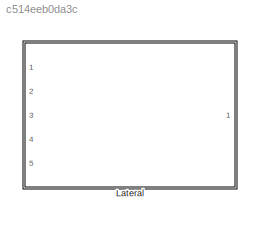
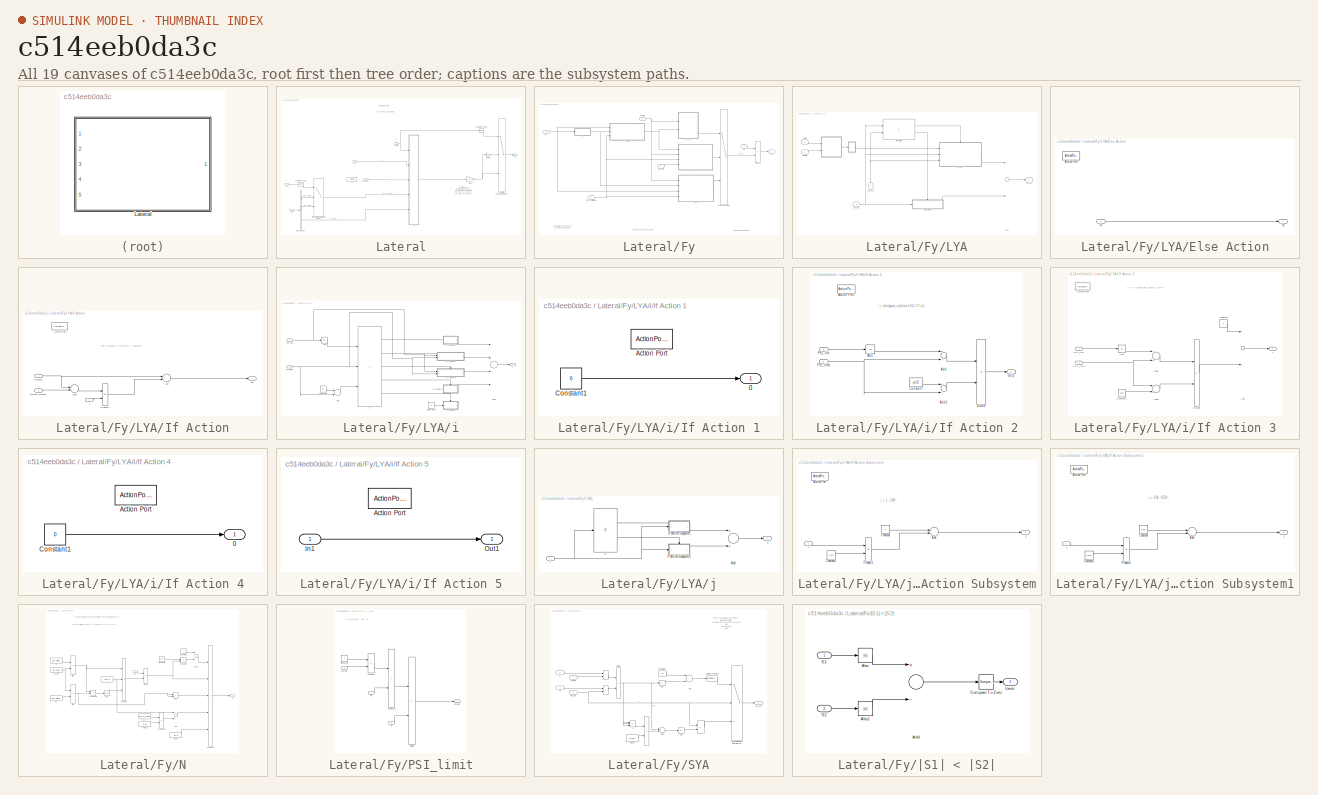
[diagram: thumbnail index - all 19 canvases of the model, root first then tree order]
MODEL slx_c514eeb0da3c
KIND library
BLOCK [SubSystem] Lateral
  FunctionWithSeparateData = off
  MaskHideContents = off
  MinAlgLoopOccurrences = off
  Opaque = off
  Ports = [5, 1]
  PropExecContextOutsideSubsystem = off
  RTWSystemCode = Auto
  RequestExecContextInheritance = off
BLOCK [MultiPortSwitch] Lateral/Braking effect on lateral forces
  DataPortIndices = {0,1}
  DataPortOrder = Specify indices
  InputSameDT = off
  Inputs = 2
  Ports = [3, 1]
  SaturateOnIntegerOverflow = off
BLOCK [BusSelector] Lateral/Bus Selector
  OutputSignals = mu_PSImax,mu_PSIlim,mu_slide
  Ports = [1, 3]
BLOCK [Reference] Lateral/Compare To Zero  REF=simulink/Logic and Bit
Operations/Compare
To Zero
  OutDataTypeStr = uint8
  Ports = [1, 1]
  SourceBlock = simulink/Logic and Bit\nOperations/Compare\nTo Zero
  SourceType = Compare To Zero
  ZeroCross = on
  relop = ~=
BLOCK [Reference] Lateral/Compare To Zero1  REF=simulink/Logic and Bit
Operations/Compare
To Zero
  OutDataTypeStr = boolean
  Ports = [1, 1]
  SourceBlock = simulink/Logic and Bit\nOperations/Compare\nTo Zero
  SourceType = Compare To Zero
  ZeroCross = on
  relop = <=
BLOCK [Outport] Lateral/F_y
  IconDisplay = Port number
BLOCK [Inport] Lateral/F_z
  IconDisplay = Port number
  Port = 2
BLOCK [Inport] Lateral/F_zModel
  IconDisplay = Port number
  Port = 5
BLOCK [SubSystem] Lateral/Fy
  FunctionWithSeparateData = off
  MaskHideContents = off
  MinAlgLoopOccurrences = off
  Opaque = off
  Ports = [5, 1]
  PropExecContextOutsideSubsystem = off
  RTWSystemCode = Auto
  RequestExecContextInheritance = off
BLOCK [MultiPortSwitch] Lateral/Fy vs -Fy depending on PSI
  DataPortIndices = {0,1}
  DataPortOrder = Specify indices
  InputSameDT = off
  Inputs = 2
  Ports = [3, 1]
  SaturateOnIntegerOverflow = off
BLOCK [Outport] Lateral/Fy/Fy
  IconDisplay = Port number
BLOCK [Inport] Lateral/Fy/Fz
  IconDisplay = Port number
  Port = 2
BLOCK [Inport] Lateral/Fy/Fz.
  IconDisplay = Port number
  Port = 3
BLOCK [SubSystem] Lateral/Fy/LYA
  FunctionWithSeparateData = off
  MaskHideContents = off
  MinAlgLoopOccurrences = off
  Opaque = off
  Ports = [4, 1]
  PropExecContextOutsideSubsystem = off
  RTWSystemCode = Auto
  RequestExecContextInheritance = off
BLOCK [Sum] Lateral/Fy/LYA/Add
  InputSameDT = off
  OutDataTypeStr = Inherit: Inherit via internal rule
  Ports = [2, 1]
  SaturateOnIntegerOverflow = off
BLOCK [SubSystem] Lateral/Fy/LYA/Else Action
  FunctionWithSeparateData = off
  MaskHideContents = off
  MinAlgLoopOccurrences = off
  Opaque = off
  Ports = [1, 1, 0, 0, 0, 0, 0, 1]
  PropExecContextOutsideSubsystem = off
  RTWSystemCode = Auto
  RequestExecContextInheritance = off
  TreatAsAtomicUnit = on
BLOCK [ActionPort] Lateral/Fy/LYA/Else Action/Action Port
  InitializeStates = reset
BLOCK [Inport] Lateral/Fy/LYA/Else Action/id
  IconDisplay = Port number
BLOCK [Outport] Lateral/Fy/LYA/Else Action/id'
  IconDisplay = Port number
  InitialOutput = [0]
  OutputWhenDisabled = reset
BLOCK [SubSystem] Lateral/Fy/LYA/If Action
  FunctionWithSeparateData = off
  MaskHideContents = off
  MinAlgLoopOccurrences = off
  Opaque = off
  Ports = [3, 1, 0, 0, 0, 0, 0, 1]
  PropExecContextOutsideSubsystem = off
  RTWSystemCode = Auto
  RequestExecContextInheritance = off
  TreatAsAtomicUnit = on
BLOCK [ActionPort] Lateral/Fy/LYA/If Action/Action Port
  InitializeStates = reset
  PropagateVarSize = During execution
BLOCK [Sum] Lateral/Fy/LYA/If Action/Add
  InputSameDT = off
  OutDataTypeStr = Inherit: Inherit via internal rule
  Ports = [2, 1]
  SaturateOnIntegerOverflow = off
BLOCK [Sum] Lateral/Fy/LYA/If Action/Add1
  InputSameDT = off
  Inputs = -+
  OutDataTypeStr = Inherit: Inherit via internal rule
  Ports = [2, 1]
  SaturateOnIntegerOverflow = off
BLOCK [Product] Lateral/Fy/LYA/If Action/Product1
  InputSameDT = off
  OutDataTypeStr = Inherit: Inherit via internal rule
  Ports = [2, 1]
  RndMeth = Floor
  SaturateOnIntegerOverflow = off
BLOCK [Inport] Lateral/Fy/LYA/If Action/j
  IconDisplay = Port number
BLOCK [Inport] Lateral/Fy/LYA/If Action/mu_psi_LimMax
  IconDisplay = Port number
  Port = 2
BLOCK [Inport] Lateral/Fy/LYA/If Action/mu_skid
  IconDisplay = Port number
  Port = 3
BLOCK [Outport] Lateral/Fy/LYA/If Action/res
  IconDisplay = Port number
  InitialOutput = [0]
  OutputWhenDisabled = reset
BLOCK [If] Lateral/Fy/LYA/If Condition
  IfExpression = u1 > u2
  NumInputs = 2
  Ports = [2, 2]
BLOCK [Inport] Lateral/Fy/LYA/PSI_limit
  IconDisplay = Port number
BLOCK [Inport] Lateral/Fy/LYA/PSI_tire
  IconDisplay = Port number
  Port = 2
BLOCK [SubSystem] Lateral/Fy/LYA/i
  FunctionWithSeparateData = off
  MaskHideContents = off
  MinAlgLoopOccurrences = off
  Opaque = off
  Ports = [2, 1]
  PropExecContextOutsideSubsystem = off
  RTWSystemCode = Auto
  RequestExecContextInheritance = off
BLOCK [Abs] Lateral/Fy/LYA/i/Abs
  SaturateOnIntegerOverflow = off
BLOCK [Sum] Lateral/Fy/LYA/i/Add
  InputSameDT = off
  Inputs = +-
  OutDataTypeStr = Inherit: Inherit via internal rule
  Ports = [2, 1]
  SaturateOnIntegerOverflow = off
BLOCK [Sum] Lateral/Fy/LYA/i/Add1
  InputSameDT = off
  Inputs = ++++
  OutDataTypeStr = Inherit: Inherit via internal rule
  Ports = [4, 1]
  SaturateOnIntegerOverflow = off
BLOCK [Constant] Lateral/Fy/LYA/i/Constant
  Value = pi
BLOCK [Constant] Lateral/Fy/LYA/i/Constant5
  Value = 5
BLOCK [If] Lateral/Fy/LYA/i/If
  ElseIfExpressions = u2 <  u1 & u1 < 1.57, 1.57 < u1 & u1 < 3.14, u3 <= u1
  IfExpression = 0 < u1 & u1 < u2
  NumInputs = 3
  Ports = [3, 5]
BLOCK [SubSystem] Lateral/Fy/LYA/i/If Action 1
  FunctionWithSeparateData = off
  MaskHideContents = off
  MinAlgLoopOccurrences = off
  Opaque = off
  Ports = [0, 1, 0, 0, 0, 0, 0, 1]
  PropExecContextOutsideSubsystem = off
  RTWSystemCode = Auto
  RequestExecContextInheritance = off
  TreatAsAtomicUnit = on
BLOCK [Outport] Lateral/Fy/LYA/i/If Action 1/0
  IconDisplay = Port number
  InitialOutput = [0]
  OutputWhenDisabled = reset
BLOCK [ActionPort] Lateral/Fy/LYA/i/If Action 1/Action Port
  InitializeStates = reset
  PropagateVarSize = During execution
BLOCK [Constant] Lateral/Fy/LYA/i/If Action 1/Constant1
  Value = 0
BLOCK [SubSystem] Lateral/Fy/LYA/i/If Action 2
  FunctionWithSeparateData = off
  MaskHideContents = off
  MinAlgLoopOccurrences = off
  Opaque = off
  Ports = [2, 1, 0, 0, 0, 0, 0, 1]
  PropExecContextOutsideSubsystem = off
  RTWSystemCode = Auto
  RequestExecContextInheritance = off
  TreatAsAtomicUnit = on
BLOCK [Abs] Lateral/Fy/LYA/i/If Action 2/Abs
  SaturateOnIntegerOverflow = off
BLOCK [ActionPort] Lateral/Fy/LYA/i/If Action 2/Action Port
  InitializeStates = reset
BLOCK [Sum] Lateral/Fy/LYA/i/If Action 2/Add
  InputSameDT = off
  Inputs = +-
  OutDataTypeStr = Inherit: Inherit via internal rule
  Ports = [2, 1]
  SaturateOnIntegerOverflow = off
BLOCK [Sum] Lateral/Fy/LYA/i/If Action 2/Add1
  InputSameDT = off
  Inputs = +-
  OutDataTypeStr = Inherit: Inherit via internal rule
  Ports = [2, 1]
  SaturateOnIntegerOverflow = off
BLOCK [Constant] Lateral/Fy/LYA/i/If Action 2/Constant
  Value = pi/2
BLOCK [Product] Lateral/Fy/LYA/i/If Action 2/Divide
  InputSameDT = off
  Inputs = */
  OutDataTypeStr = Inherit: Inherit via internal rule
  Ports = [2, 1]
  RndMeth = Floor
  SaturateOnIntegerOverflow = off
BLOCK [Outport] Lateral/Fy/LYA/i/If Action 2/Out1
  IconDisplay = Port number
  InitialOutput = [0]
  OutputWhenDisabled = reset
BLOCK [Inport] Lateral/Fy/LYA/i/If Action 2/PSI_limit
  IconDisplay = Port number
  Port = 2
BLOCK [Inport] Lateral/Fy/LYA/i/If Action 2/PSI_tire
  IconDisplay = Port number
BLOCK [SubSystem] Lateral/Fy/LYA/i/If Action 3
  FunctionWithSeparateData = off
  MaskHideContents = off
  MinAlgLoopOccurrences = off
  Opaque = off
  Ports = [2, 1, 0, 0, 0, 0, 0, 1]
  PropExecContextOutsideSubsystem = off
  RTWSystemCode = Auto
  RequestExecContextInheritance = off
  TreatAsAtomicUnit = on
BLOCK [Abs] Lateral/Fy/LYA/i/If Action 3/Abs
  SaturateOnIntegerOverflow = off
BLOCK [ActionPort] Lateral/Fy/LYA/i/If Action 3/Action Port
  InitializeStates = reset
  PropagateVarSize = During execution
BLOCK [Sum] Lateral/Fy/LYA/i/If Action 3/Add
  InputSameDT = off
  OutDataTypeStr = Inherit: Inherit via internal rule
  Ports = [2, 1]
  SaturateOnIntegerOverflow = off
BLOCK [Sum] Lateral/Fy/LYA/i/If Action 3/Add1
  InputSameDT = off
  Inputs = -+
  OutDataTypeStr = Inherit: Inherit via internal rule
  Ports = [2, 1]
  SaturateOnIntegerOverflow = off
BLOCK [Sum] Lateral/Fy/LYA/i/If Action 3/Add2
  InputSameDT = off
  Inputs = -+
  OutDataTypeStr = Inherit: Inherit via internal rule
  Ports = [2, 1]
  SaturateOnIntegerOverflow = off
BLOCK [Constant] Lateral/Fy/LYA/i/If Action 3/Constant
  Value = 2
BLOCK [Constant] Lateral/Fy/LYA/i/If Action 3/Constant1
  Value = pi/2
BLOCK [Product] Lateral/Fy/LYA/i/If Action 3/Divide
  InputSameDT = off
  Inputs = */
  OutDataTypeStr = Inherit: Inherit via internal rule
  Ports = [2, 1]
  RndMeth = Floor
  SaturateOnIntegerOverflow = off
BLOCK [Inport] Lateral/Fy/LYA/i/If Action 3/PSI_limit
  IconDisplay = Port number
  Port = 2
BLOCK [Inport] Lateral/Fy/LYA/i/If Action 3/PSI_tire
  IconDisplay = Port number
BLOCK [Outport] Lateral/Fy/LYA/i/If Action 3/i
  IconDisplay = Port number
  InitialOutput = [0]
  OutputWhenDisabled = reset
BLOCK [SubSystem] Lateral/Fy/LYA/i/If Action 4
  FunctionWithSeparateData = off
  MaskHideContents = off
  MinAlgLoopOccurrences = off
  Opaque = off
  Ports = [0, 1, 0, 0, 0, 0, 0, 1]
  PropExecContextOutsideSubsystem = off
  RTWSystemCode = Auto
  RequestExecContextInheritance = off
  TreatAsAtomicUnit = on
BLOCK [Outport] Lateral/Fy/LYA/i/If Action 4/0
  IconDisplay = Port number
  InitialOutput = [0]
  OutputWhenDisabled = reset
BLOCK [ActionPort] Lateral/Fy/LYA/i/If Action 4/Action Port
  InitializeStates = reset
  PropagateVarSize = During execution
BLOCK [Constant] Lateral/Fy/LYA/i/If Action 4/Constant1
  Value = 0
BLOCK [SubSystem] Lateral/Fy/LYA/i/If Action 5
  FunctionWithSeparateData = off
  MaskHideContents = off
  MinAlgLoopOccurrences = off
  Opaque = off
  Ports = [1, 1, 0, 0, 0, 0, 0, 1]
  PropExecContextOutsideSubsystem = off
  RTWSystemCode = Auto
  RequestExecContextInheritance = off
  TreatAsAtomicUnit = on
BLOCK [ActionPort] Lateral/Fy/LYA/i/If Action 5/Action Port
  InitializeStates = reset
  PropagateVarSize = During execution
BLOCK [Inport] Lateral/Fy/LYA/i/If Action 5/In1
  IconDisplay = Port number
BLOCK [Outport] Lateral/Fy/LYA/i/If Action 5/Out1
  IconDisplay = Port number
  InitialOutput = [0]
  OutputWhenDisabled = reset
BLOCK [Inport] Lateral/Fy/LYA/i/PSI_limit
  IconDisplay = Port number
  Port = 2
BLOCK [Inport] Lateral/Fy/LYA/i/PSI_tire
  IconDisplay = Port number
BLOCK [Outport] Lateral/Fy/LYA/i/i
  IconDisplay = Port number
BLOCK [SubSystem] Lateral/Fy/LYA/j
  FunctionWithSeparateData = off
  MaskHideContents = off
  MinAlgLoopOccurrences = off
  Opaque = off
  Ports = [1, 1]
  PropExecContextOutsideSubsystem = off
  RTWSystemCode = Auto
  RequestExecContextInheritance = off
BLOCK [Sum] Lateral/Fy/LYA/j/Add
  InputSameDT = off
  OutDataTypeStr = Inherit: Inherit via internal rule
  Ports = [2, 1]
  SaturateOnIntegerOverflow = off
BLOCK [If] Lateral/Fy/LYA/j/If
  IfExpression = u1 < 0.3
  Ports = [1, 2]
BLOCK [SubSystem] Lateral/Fy/LYA/j/If Action Subsystem
  FunctionWithSeparateData = off
  MaskHideContents = off
  MinAlgLoopOccurrences = off
  Opaque = off
  Ports = [1, 1, 0, 0, 0, 0, 0, 1]
  PropExecContextOutsideSubsystem = off
  RTWSystemCode = Auto
  RequestExecContextInheritance = off
  TreatAsAtomicUnit = on
BLOCK [ActionPort] Lateral/Fy/LYA/j/If Action Subsystem/Action Port
  InitializeStates = reset
  PropagateVarSize = During execution
BLOCK [Sum] Lateral/Fy/LYA/j/If Action Subsystem/Add
  InputSameDT = off
  Inputs = +-
  OutDataTypeStr = Inherit: Inherit via internal rule
  Ports = [2, 1]
  SaturateOnIntegerOverflow = off
BLOCK [Constant] Lateral/Fy/LYA/j/If Action Subsystem/Constant
BLOCK [Constant] Lateral/Fy/LYA/j/If Action Subsystem/Constant1
  Value = 1.93
BLOCK [Product] Lateral/Fy/LYA/j/If Action Subsystem/Product1
  InputSameDT = off
  OutDataTypeStr = Inherit: Inherit via internal rule
  Ports = [2, 1]
  RndMeth = Floor
  SaturateOnIntegerOverflow = off
BLOCK [Inport] Lateral/Fy/LYA/j/If Action Subsystem/i
  IconDisplay = Port number
BLOCK [Outport] Lateral/Fy/LYA/j/If Action Subsystem/j
  IconDisplay = Port number
  InitialOutput = [0]
  OutputWhenDisabled = reset
BLOCK [SubSystem] Lateral/Fy/LYA/j/If Action Subsystem1
  FunctionWithSeparateData = off
  MaskHideContents = off
  MinAlgLoopOccurrences = off
  Opaque = off
  Ports = [1, 1, 0, 0, 0, 0, 0, 1]
  PropExecContextOutsideSubsystem = off
  RTWSystemCode = Auto
  RequestExecContextInheritance = off
  TreatAsAtomicUnit = on
BLOCK [ActionPort] Lateral/Fy/LYA/j/If Action Subsystem1/Action Port
  InitializeStates = reset
BLOCK [Sum] Lateral/Fy/LYA/j/If Action Subsystem1/Add
  InputSameDT = off
  Inputs = +-
  OutDataTypeStr = Inherit: Inherit via internal rule
  Ports = [2, 1]
  SaturateOnIntegerOverflow = off
BLOCK [Constant] Lateral/Fy/LYA/j/If Action Subsystem1/Constant
  Value = 0.58
BLOCK [Constant] Lateral/Fy/LYA/j/If Action Subsystem1/Constant1
  Value = 0.575
BLOCK [Product] Lateral/Fy/LYA/j/If Action Subsystem1/Product1
  InputSameDT = off
  OutDataTypeStr = Inherit: Inherit via internal rule
  Ports = [2, 1]
  RndMeth = Floor
  SaturateOnIntegerOverflow = off
BLOCK [Inport] Lateral/Fy/LYA/j/If Action Subsystem1/i
  IconDisplay = Port number
BLOCK [Outport] Lateral/Fy/LYA/j/If Action Subsystem1/j
  IconDisplay = Port number
  InitialOutput = [0]
  OutputWhenDisabled = reset
BLOCK [Inport] Lateral/Fy/LYA/j/i
  IconDisplay = Port number
BLOCK [Outport] Lateral/Fy/LYA/j/j
  IconDisplay = Port number
BLOCK [Outport] Lateral/Fy/LYA/mu_PSI
  IconDisplay = Port number
BLOCK [Inport] Lateral/Fy/LYA/mu_psi
  IconDisplay = Port number
  Port = 3
BLOCK [Inport] Lateral/Fy/LYA/mu_skid
  IconDisplay = Port number
  Port = 4
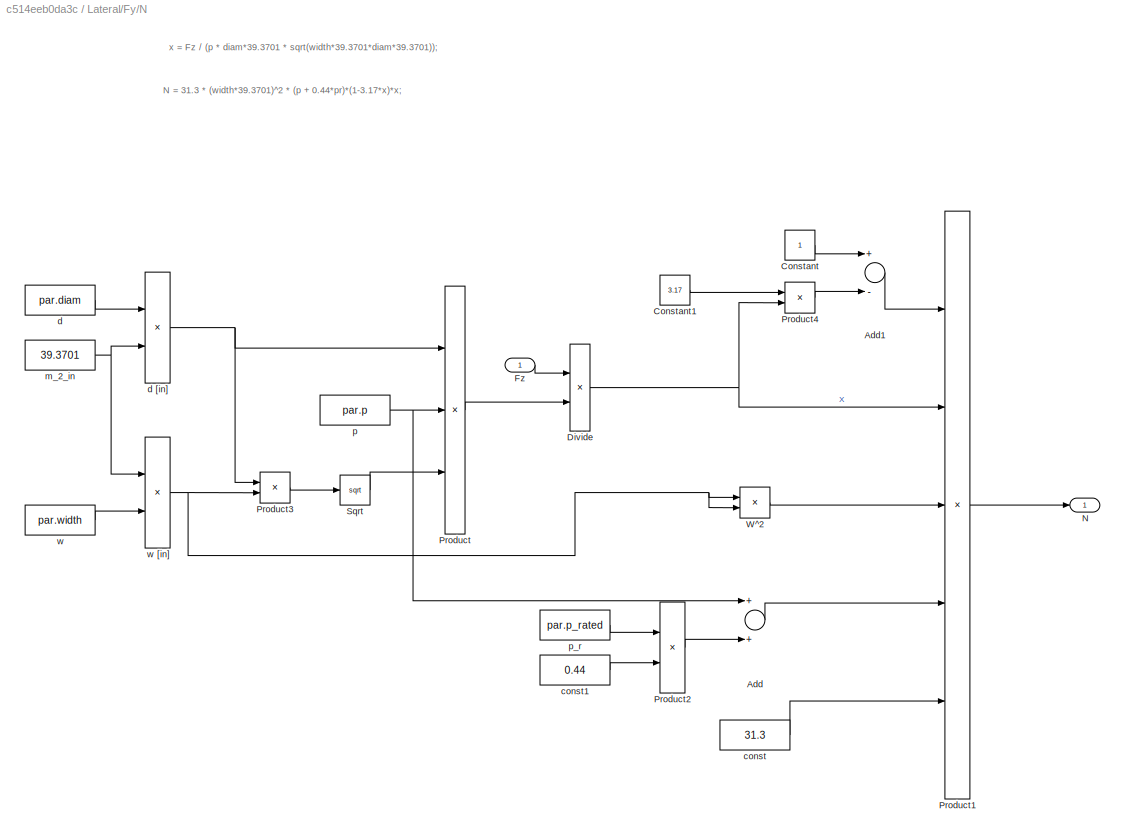
BLOCK [SubSystem] Lateral/Fy/N
  FunctionWithSeparateData = off
  MaskHideContents = off
  MinAlgLoopOccurrences = off
  Opaque = off
  Ports = [1, 1]
  PropExecContextOutsideSubsystem = off
  RTWSystemCode = Auto
  RequestExecContextInheritance = off
BLOCK [Sum] Lateral/Fy/N/Add
  InputSameDT = off
  OutDataTypeStr = Inherit: Inherit via internal rule
  Ports = [2, 1]
  SaturateOnIntegerOverflow = off
BLOCK [Sum] Lateral/Fy/N/Add1
  InputSameDT = off
  Inputs = +-
  OutDataTypeStr = Inherit: Inherit via internal rule
  Ports = [2, 1]
  SaturateOnIntegerOverflow = off
BLOCK [Constant] Lateral/Fy/N/Constant
BLOCK [Constant] Lateral/Fy/N/Constant1
  Value = 3.17
BLOCK [Product] Lateral/Fy/N/Divide
  InputSameDT = off
  Inputs = */
  OutDataTypeStr = Inherit: Inherit via internal rule
  Ports = [2, 1]
  RndMeth = Floor
  SaturateOnIntegerOverflow = off
BLOCK [Inport] Lateral/Fy/N/Fz
  IconDisplay = Port number
BLOCK [Outport] Lateral/Fy/N/N
  IconDisplay = Port number
BLOCK [Product] Lateral/Fy/N/Product
  InputSameDT = off
  Inputs = 3
  OutDataTypeStr = Inherit: Inherit via internal rule
  Ports = [3, 1]
  RndMeth = Floor
  SaturateOnIntegerOverflow = off
BLOCK [Product] Lateral/Fy/N/Product1
  InputSameDT = off
  Inputs = 5
  OutDataTypeStr = Inherit: Inherit via internal rule
  Ports = [5, 1]
  RndMeth = Floor
  SaturateOnIntegerOverflow = off
BLOCK [Product] Lateral/Fy/N/Product2
  InputSameDT = off
  OutDataTypeStr = Inherit: Inherit via internal rule
  Ports = [2, 1]
  RndMeth = Floor
  SaturateOnIntegerOverflow = off
BLOCK [Product] Lateral/Fy/N/Product3
  InputSameDT = off
  OutDataTypeStr = Inherit: Inherit via internal rule
  Ports = [2, 1]
  RndMeth = Floor
  SaturateOnIntegerOverflow = off
BLOCK [Product] Lateral/Fy/N/Product4
  InputSameDT = off
  OutDataTypeStr = Inherit: Inherit via internal rule
  Ports = [2, 1]
  RndMeth = Floor
  SaturateOnIntegerOverflow = off
BLOCK [Sqrt] Lateral/Fy/N/Sqrt
BLOCK [Product] Lateral/Fy/N/W^2
  InputSameDT = off
  OutDataTypeStr = Inherit: Inherit via internal rule
  Ports = [2, 1]
  RndMeth = Floor
  SaturateOnIntegerOverflow = off
BLOCK [Constant] Lateral/Fy/N/const
  Value = 31.3
BLOCK [Constant] Lateral/Fy/N/const1 
  Value = 0.44
BLOCK [Constant] Lateral/Fy/N/d
  Value = par.diam
BLOCK [Product] Lateral/Fy/N/d [in]
  InputSameDT = off
  OutDataTypeStr = Inherit: Inherit via internal rule
  Ports = [2, 1]
  RndMeth = Floor
  SaturateOnIntegerOverflow = off
BLOCK [Constant] Lateral/Fy/N/m_2_in
  Value = 39.3701
BLOCK [Constant] Lateral/Fy/N/p
  Value = par.p
BLOCK [Constant] Lateral/Fy/N/p_r
  Value = par.p_rated
BLOCK [Constant] Lateral/Fy/N/w
  Value = par.width
BLOCK [Product] Lateral/Fy/N/w [in]
  InputSameDT = off
  OutDataTypeStr = Inherit: Inherit via internal rule
  Ports = [2, 1]
  RndMeth = Floor
  SaturateOnIntegerOverflow = off
BLOCK [SubSystem] Lateral/Fy/PSI_limit
  FunctionWithSeparateData = off
  MaskHideContents = off
  MinAlgLoopOccurrences = off
  Opaque = off
  Ports = [3, 1]
  PropExecContextOutsideSubsystem = off
  RTWSystemCode = Auto
  RequestExecContextInheritance = off
BLOCK [Constant] Lateral/Fy/PSI_limit/Constant
  Value = 2
BLOCK [Product] Lateral/Fy/PSI_limit/Divide
  InputSameDT = off
  Inputs = */
  OutDataTypeStr = Inherit: Inherit via internal rule
  Ports = [2, 1]
  RndMeth = Floor
  SaturateOnIntegerOverflow = off
BLOCK [Inport] Lateral/Fy/PSI_limit/Fz
  IconDisplay = Port number
BLOCK [Inport] Lateral/Fy/PSI_limit/N
  IconDisplay = Port number
  Port = 2
BLOCK [Outport] Lateral/Fy/PSI_limit/PSI_lim
  IconDisplay = Port number
BLOCK [Product] Lateral/Fy/PSI_limit/Product
  InputSameDT = off
  OutDataTypeStr = Inherit: Inherit via internal rule
  Ports = [2, 1]
  RndMeth = Floor
  SaturateOnIntegerOverflow = off
BLOCK [Product] Lateral/Fy/PSI_limit/Product1
  InputSameDT = off
  OutDataTypeStr = Inherit: Inherit via internal rule
  Ports = [2, 1]
  RndMeth = Floor
  SaturateOnIntegerOverflow = off
BLOCK [Inport] Lateral/Fy/PSI_limit/mu_psi
  IconDisplay = Port number
  Port = 3
BLOCK [Inport] Lateral/Fy/PSI_tire
  IconDisplay = Port number
BLOCK [Product] Lateral/Fy/Product
  InputSameDT = off
  OutDataTypeStr = Inherit: Inherit via internal rule
  Ports = [2, 1]
  RndMeth = Floor
  SaturateOnIntegerOverflow = off
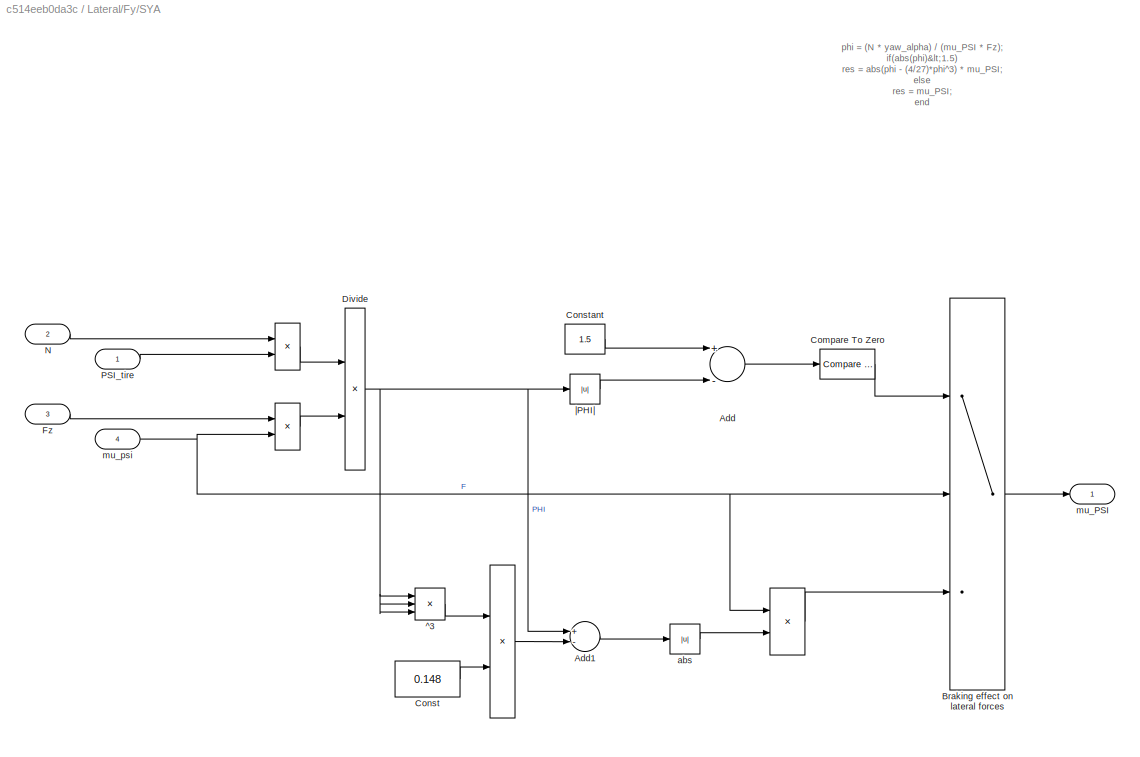
BLOCK [SubSystem] Lateral/Fy/SYA
  FunctionWithSeparateData = off
  MaskHideContents = off
  MinAlgLoopOccurrences = off
  Opaque = off
  Ports = [4, 1]
  PropExecContextOutsideSubsystem = off
  RTWSystemCode = Auto
  RequestExecContextInheritance = off
BLOCK [Product] Lateral/Fy/SYA/ 
  InputSameDT = off
  OutDataTypeStr = Inherit: Inherit via internal rule
  Ports = [2, 1]
  RndMeth = Floor
  SaturateOnIntegerOverflow = off
BLOCK [Product] Lateral/Fy/SYA/  
  InputSameDT = off
  OutDataTypeStr = Inherit: Inherit via internal rule
  Ports = [2, 1]
  RndMeth = Floor
  SaturateOnIntegerOverflow = off
BLOCK [Product] Lateral/Fy/SYA/                           
  InputSameDT = off
  OutDataTypeStr = Inherit: Inherit via internal rule
  Ports = [2, 1]
  RndMeth = Floor
  SaturateOnIntegerOverflow = off
BLOCK [Product] Lateral/Fy/SYA/                                          
  InputSameDT = off
  OutDataTypeStr = Inherit: Inherit via internal rule
  Ports = [2, 1]
  RndMeth = Floor
  SaturateOnIntegerOverflow = off
BLOCK [MultiPortSwitch] Lateral/Fy/SYA//LYA selector
  DataPortIndices = {0,1}
  DataPortOrder = Specify indices
  InputSameDT = off
  Inputs = 2
  Ports = [3, 1]
  SaturateOnIntegerOverflow = off
BLOCK [Sum] Lateral/Fy/SYA/Add
  InputSameDT = off
  Inputs = +-
  OutDataTypeStr = Inherit: Inherit via internal rule
  Ports = [2, 1]
  SaturateOnIntegerOverflow = off
BLOCK [Sum] Lateral/Fy/SYA/Add1
  InputSameDT = off
  Inputs = +-
  OutDataTypeStr = Inherit: Inherit via internal rule
  Ports = [2, 1]
  SaturateOnIntegerOverflow = off
BLOCK [MultiPortSwitch] Lateral/Fy/SYA/Braking effect on lateral forces
  DataPortIndices = {0,1}
  DataPortOrder = Specify indices
  InputSameDT = off
  Inputs = 2
  Ports = [3, 1]
  SaturateOnIntegerOverflow = off
BLOCK [Reference] Lateral/Fy/SYA/Compare To Zero  REF=simulink/Logic and Bit
Operations/Compare
To Zero
  OutDataTypeStr = boolean
  Ports = [1, 1]
  SourceBlock = simulink/Logic and Bit\nOperations/Compare\nTo Zero
  SourceType = Compare To Zero
  ZeroCross = on
  relop = >
BLOCK [Constant] Lateral/Fy/SYA/Const
  Value = 0.148
BLOCK [Constant] Lateral/Fy/SYA/Constant
  Value = 1.5
BLOCK [Product] Lateral/Fy/SYA/Divide
  InputSameDT = off
  Inputs = */
  OutDataTypeStr = Inherit: Inherit via internal rule
  Ports = [2, 1]
  RndMeth = Floor
  SaturateOnIntegerOverflow = off
BLOCK [Inport] Lateral/Fy/SYA/Fz
  IconDisplay = Port number
  Port = 3
BLOCK [Inport] Lateral/Fy/SYA/N
  IconDisplay = Port number
  Port = 2
BLOCK [Inport] Lateral/Fy/SYA/PSI_tire
  IconDisplay = Port number
BLOCK [Product] Lateral/Fy/SYA/^3
  InputSameDT = off
  Inputs = 3
  OutDataTypeStr = Inherit: Inherit via internal rule
  Ports = [3, 1]
  RndMeth = Floor
  SaturateOnIntegerOverflow = off
BLOCK [Abs] Lateral/Fy/SYA/abs
  SaturateOnIntegerOverflow = off
BLOCK [Outport] Lateral/Fy/SYA/mu_PSI
  IconDisplay = Port number
BLOCK [Inport] Lateral/Fy/SYA/mu_psi
  IconDisplay = Port number
  Port = 4
BLOCK [Abs] Lateral/Fy/SYA/|PHI|
  SaturateOnIntegerOverflow = off
BLOCK [Inport] Lateral/Fy/mu_PSI_limMax
  IconDisplay = Port number
  Port = 4
BLOCK [Inport] Lateral/Fy/mu_skid
  IconDisplay = Port number
  Port = 5
BLOCK [SubSystem] Lateral/Fy/|S1| < |S2|
  FunctionWithSeparateData = off
  MaskHideContents = off
  MinAlgLoopOccurrences = off
  Opaque = off
  Ports = [2, 1]
  PropExecContextOutsideSubsystem = off
  RTWSystemCode = Auto
  RequestExecContextInheritance = off
BLOCK [Abs] Lateral/Fy/|S1| < |S2|/Abs
  SaturateOnIntegerOverflow = off
BLOCK [Abs] Lateral/Fy/|S1| < |S2|/Abs1
  SaturateOnIntegerOverflow = off
BLOCK [Sum] Lateral/Fy/|S1| < |S2|/Add
  InputSameDT = off
  Inputs = +-
  OutDataTypeStr = Inherit: Inherit via internal rule
  Ports = [2, 1]
  SaturateOnIntegerOverflow = off
BLOCK [Reference] Lateral/Fy/|S1| < |S2|/Compare To Zero  REF=simulink/Logic and Bit
Operations/Compare
To Zero
  OutDataTypeStr = uint8
  Ports = [1, 1]
  SourceBlock = simulink/Logic and Bit\nOperations/Compare\nTo Zero
  SourceType = Compare To Zero
  ZeroCross = on
  relop = <
BLOCK [Inport] Lateral/Fy/|S1| < |S2|/S1
  IconDisplay = Port number
BLOCK [Inport] Lateral/Fy/|S1| < |S2|/S2
  IconDisplay = Port number
  Port = 2
BLOCK [Outport] Lateral/Fy/|S1| < |S2|/lower
  IconDisplay = Port number
BLOCK [Constant] Lateral/Fz
  Commented = on
  Value = 40000
BLOCK [Gain] Lateral/Gain1
  Gain = -1
  OutDataTypeStr = Inherit: Inherit via internal rule
  ParamDataTypeStr = Inherit: Inherit via internal rule
  SaturateOnIntegerOverflow = off
BLOCK [Gain] Lateral/Gain2
  OutDataTypeStr = Inherit: Inherit via internal rule
  ParamDataTypeStr = Inherit: Inherit via internal rule
  SaturateOnIntegerOverflow = off
BLOCK [Inport] Lateral/PSI_tire
  IconDisplay = Port number
BLOCK [Inport] Lateral/coeff
  IconDisplay = Port number
  Port = 4
BLOCK [Inport] Lateral/k_b
  IconDisplay = Port number
  Port = 3
ANNOTATION Lateral: Fy je prilis velka, takto je priblizne rovnaka ako v rankinovom modeli (Fy_max_RL = 70000 N) (Fy_max_N = 30000 N)
ANNOTATION Lateral: F_yRL = f(yaw, F_zRL, v, w, d, p)
ANNOTATION Lateral: Lateral Force of Tire
ANNOTATION Lateral/Fy: Fz[dot] - corresponds to Fz40K Fz - corresponds to real Fz
ANNOTATION Lateral/Fy: N is a function of (Fz, PSI, p, d, w)
ANNOTATION Lateral/Fy: PSI_Limit should be cca 20 degree
ANNOTATION Lateral/Fy/LYA/If Action: res = mu_skid + j*(mu_PSI - mu_skid)
ANNOTATION Lateral/Fy/LYA/i/If Action 2: i = (abs(yaw_alpha)-h)/(1.57-h);
ANNOTATION Lateral/Fy/LYA/i/If Action 3: i = 2 + (h-abs(yaw_alpha))/(1.57-h);
ANNOTATION Lateral/Fy/LYA/j/If Action Subsystem: j = 1 - 1.93*i;
ANNOTATION Lateral/Fy/LYA/j/If Action Subsystem1: j = 0.58 - 0.575*i;
ANNOTATION Lateral/Fy/N: N = 31.3 * (width*39.3701)^2 * (p + 0.44*pr)*(1-3.17*x)*x;
ANNOTATION Lateral/Fy/N: x = Fz / (p * diam*39.3701 * sqrt(width*39.3701*diam*39.3701));
ANNOTATION Lateral/Fy/PSI_limit: h = 2*mu_PSI * Fz / N;
ANNOTATION Lateral/Fy/SYA: phi = (N * yaw_alpha) / (mu_PSI * Fz); if(abs(phi)<1.5) res = abs(phi - (4/27)*phi^3) * mu_PSI; else res = mu_PSI; end
LINE Lateral/Braking effect on lateral forces:1 -> Lateral/Fy:4
LINE Lateral/Bus Selector:1 -> Lateral/Braking effect on lateral forces:2
LINE Lateral/Bus Selector:2 -> Lateral/Braking effect on lateral forces:3
LINE Lateral/Bus Selector:3 -> Lateral/Fy:5
LINE Lateral/Compare To Zero1:1 -> Lateral/Fy vs -Fy depending on PSI:1
LINE Lateral/Compare To Zero:1 -> Lateral/Braking effect on lateral forces:1
LINE Lateral/F_z:1 -> Lateral/Fy:2
LINE Lateral/F_zModel:1 -> Lateral/Fy:3
LINE Lateral/Fy vs -Fy depending on PSI:1 -> Lateral/F_y:1
NET Lateral/Fy/Fz.:1 -> Lateral/Fy/N:1, Lateral/Fy/PSI_limit:1, Lateral/Fy/SYA:3
LINE Lateral/Fy/Fz:1 -> Lateral/Fy/Product:1
LINE Lateral/Fy/LYA/Add:1 -> Lateral/Fy/LYA/mu_PSI:1
LINE Lateral/Fy/LYA/Else Action/id:1 -> Lateral/Fy/LYA/Else Action/id':1
LINE Lateral/Fy/LYA/Else Action:1 -> Lateral/Fy/LYA/Add:2
LINE Lateral/Fy/LYA/If Action/Add1:1 -> Lateral/Fy/LYA/If Action/Product1:1
LINE Lateral/Fy/LYA/If Action/Add:1 -> Lateral/Fy/LYA/If Action/res:1
LINE Lateral/Fy/LYA/If Action/Product1:1 -> Lateral/Fy/LYA/If Action/Add:2
LINE Lateral/Fy/LYA/If Action/j:1 -> Lateral/Fy/LYA/If Action/Product1:2
LINE Lateral/Fy/LYA/If Action/mu_psi_LimMax:1 -> Lateral/Fy/LYA/If Action/Add1:2
NET Lateral/Fy/LYA/If Action/mu_skid:1 -> Lateral/Fy/LYA/If Action/Add1:1, Lateral/Fy/LYA/If Action/Add:1
LINE Lateral/Fy/LYA/If Action:1 -> Lateral/Fy/LYA/Add:1
LINE Lateral/Fy/LYA/If Condition:1 -> Lateral/Fy/LYA/If Action:ifaction
LINE Lateral/Fy/LYA/If Condition:2 -> Lateral/Fy/LYA/Else Action:ifaction
LINE Lateral/Fy/LYA/PSI_limit:1 -> Lateral/Fy/LYA/i:2
LINE Lateral/Fy/LYA/PSI_tire:1 -> Lateral/Fy/LYA/i:1
LINE Lateral/Fy/LYA/i/Abs:1 -> Lateral/Fy/LYA/i/If:1
LINE Lateral/Fy/LYA/i/Add1:1 -> Lateral/Fy/LYA/i/i:1
LINE Lateral/Fy/LYA/i/Add:1 -> Lateral/Fy/LYA/i/If:3
LINE Lateral/Fy/LYA/i/Constant5:1 -> Lateral/Fy/LYA/i/If Action 5:1
LINE Lateral/Fy/LYA/i/Constant:1 -> Lateral/Fy/LYA/i/Add:1
LINE Lateral/Fy/LYA/i/If Action 1/Constant1:1 -> Lateral/Fy/LYA/i/If Action 1/0:1
LINE Lateral/Fy/LYA/i/If Action 1:1 -> Lateral/Fy/LYA/i/Add1:1
LINE Lateral/Fy/LYA/i/If Action 2/Abs:1 -> Lateral/Fy/LYA/i/If Action 2/Add:1
LINE Lateral/Fy/LYA/i/If Action 2/Add1:1 -> Lateral/Fy/LYA/i/If Action 2/Divide:2
LINE Lateral/Fy/LYA/i/If Action 2/Add:1 -> Lateral/Fy/LYA/i/If Action 2/Divide:1
LINE Lateral/Fy/LYA/i/If Action 2/Constant:1 -> Lateral/Fy/LYA/i/If Action 2/Add1:1
LINE Lateral/Fy/LYA/i/If Action 2/Divide:1 -> Lateral/Fy/LYA/i/If Action 2/Out1:1
NET Lateral/Fy/LYA/i/If Action 2/PSI_limit:1 -> Lateral/Fy/LYA/i/If Action 2/Add1:2, Lateral/Fy/LYA/i/If Action 2/Add:2
LINE Lateral/Fy/LYA/i/If Action 2/PSI_tire:1 -> Lateral/Fy/LYA/i/If Action 2/Abs:1
LINE Lateral/Fy/LYA/i/If Action 2:1 -> Lateral/Fy/LYA/i/Add1:2
LINE Lateral/Fy/LYA/i/If Action 3/Abs:1 -> Lateral/Fy/LYA/i/If Action 3/Add1:1
LINE Lateral/Fy/LYA/i/If Action 3/Add1:1 -> Lateral/Fy/LYA/i/If Action 3/Divide:1
LINE Lateral/Fy/LYA/i/If Action 3/Add2:1 -> Lateral/Fy/LYA/i/If Action 3/Divide:2
LINE Lateral/Fy/LYA/i/If Action 3/Add:1 -> Lateral/Fy/LYA/i/If Action 3/i:1
LINE Lateral/Fy/LYA/i/If Action 3/Constant1:1 -> Lateral/Fy/LYA/i/If Action 3/Add2:2
LINE Lateral/Fy/LYA/i/If Action 3/Constant:1 -> Lateral/Fy/LYA/i/If Action 3/Add:1
LINE Lateral/Fy/LYA/i/If Action 3/Divide:1 -> Lateral/Fy/LYA/i/If Action 3/Add:2
NET Lateral/Fy/LYA/i/If Action 3/PSI_limit:1 -> Lateral/Fy/LYA/i/If Action 3/Add1:2, Lateral/Fy/LYA/i/If Action 3/Add2:1
LINE Lateral/Fy/LYA/i/If Action 3/PSI_tire:1 -> Lateral/Fy/LYA/i/If Action 3/Abs:1
LINE Lateral/Fy/LYA/i/If Action 3:1 -> Lateral/Fy/LYA/i/Add1:3
LINE Lateral/Fy/LYA/i/If Action 4/Constant1:1 -> Lateral/Fy/LYA/i/If Action 4/0:1
LINE Lateral/Fy/LYA/i/If Action 4:1 -> Lateral/Fy/LYA/i/Add1:4
LINE Lateral/Fy/LYA/i/If Action 5/In1:1 -> Lateral/Fy/LYA/i/If Action 5/Out1:1
LINE Lateral/Fy/LYA/i/If:1 -> Lateral/Fy/LYA/i/If Action 1:ifaction
LINE Lateral/Fy/LYA/i/If:2 -> Lateral/Fy/LYA/i/If Action 2:ifaction
LINE Lateral/Fy/LYA/i/If:3 -> Lateral/Fy/LYA/i/If Action 3:ifaction
LINE Lateral/Fy/LYA/i/If:4 -> Lateral/Fy/LYA/i/If Action 4:ifaction
LINE Lateral/Fy/LYA/i/If:5 -> Lateral/Fy/LYA/i/If Action 5:ifaction
NET Lateral/Fy/LYA/i/PSI_limit:1 -> Lateral/Fy/LYA/i/Add:2, Lateral/Fy/LYA/i/If Action 2:2, Lateral/Fy/LYA/i/If Action 3:2, Lateral/Fy/LYA/i/If:2
NET Lateral/Fy/LYA/i/PSI_tire:1 -> Lateral/Fy/LYA/i/Abs:1, Lateral/Fy/LYA/i/If Action 2:1, Lateral/Fy/LYA/i/If Action 3:1
LINE Lateral/Fy/LYA/i:1 -> Lateral/Fy/LYA/j:1
LINE Lateral/Fy/LYA/j/Add:1 -> Lateral/Fy/LYA/j/j:1
LINE Lateral/Fy/LYA/j/If Action Subsystem/Add:1 -> Lateral/Fy/LYA/j/If Action Subsystem/j:1
LINE Lateral/Fy/LYA/j/If Action Subsystem/Constant1:1 -> Lateral/Fy/LYA/j/If Action Subsystem/Product1:2
LINE Lateral/Fy/LYA/j/If Action Subsystem/Constant:1 -> Lateral/Fy/LYA/j/If Action Subsystem/Add:1
LINE Lateral/Fy/LYA/j/If Action Subsystem/Product1:1 -> Lateral/Fy/LYA/j/If Action Subsystem/Add:2
LINE Lateral/Fy/LYA/j/If Action Subsystem/i:1 -> Lateral/Fy/LYA/j/If Action Subsystem/Product1:1
LINE Lateral/Fy/LYA/j/If Action Subsystem1/Add:1 -> Lateral/Fy/LYA/j/If Action Subsystem1/j:1
LINE Lateral/Fy/LYA/j/If Action Subsystem1/Constant1:1 -> Lateral/Fy/LYA/j/If Action Subsystem1/Product1:2
LINE Lateral/Fy/LYA/j/If Action Subsystem1/Constant:1 -> Lateral/Fy/LYA/j/If Action Subsystem1/Add:1
LINE Lateral/Fy/LYA/j/If Action Subsystem1/Product1:1 -> Lateral/Fy/LYA/j/If Action Subsystem1/Add:2
LINE Lateral/Fy/LYA/j/If Action Subsystem1/i:1 -> Lateral/Fy/LYA/j/If Action Subsystem1/Product1:1
LINE Lateral/Fy/LYA/j/If Action Subsystem1:1 -> Lateral/Fy/LYA/j/Add:2
LINE Lateral/Fy/LYA/j/If Action Subsystem:1 -> Lateral/Fy/LYA/j/Add:1
LINE Lateral/Fy/LYA/j/If:1 -> Lateral/Fy/LYA/j/If Action Subsystem:ifaction
LINE Lateral/Fy/LYA/j/If:2 -> Lateral/Fy/LYA/j/If Action Subsystem1:ifaction
NET Lateral/Fy/LYA/j/i:1 -> Lateral/Fy/LYA/j/If Action Subsystem1:1, Lateral/Fy/LYA/j/If Action Subsystem:1, Lateral/Fy/LYA/j/If:1
LINE Lateral/Fy/LYA/j:1 -> Lateral/Fy/LYA/If Action:1
NET Lateral/Fy/LYA/mu_psi:1 -> Lateral/Fy/LYA/Else Action:1, Lateral/Fy/LYA/If Action:2, Lateral/Fy/LYA/If Condition:1
NET Lateral/Fy/LYA/mu_skid:1 -> Lateral/Fy/LYA/If Action:3, Lateral/Fy/LYA/If Condition:2
LINE Lateral/Fy/LYA:1 -> Lateral/Fy/SYA//LYA selector:2
LINE Lateral/Fy/N/Add1:1 -> Lateral/Fy/N/Product1:1
LINE Lateral/Fy/N/Add:1 -> Lateral/Fy/N/Product1:4
LINE Lateral/Fy/N/Constant1:1 -> Lateral/Fy/N/Product4:1
LINE Lateral/Fy/N/Constant:1 -> Lateral/Fy/N/Add1:1
NET Lateral/Fy/N/Divide:1 -> Lateral/Fy/N/Product1:2, Lateral/Fy/N/Product4:2
LINE Lateral/Fy/N/Fz:1 -> Lateral/Fy/N/Divide:1
LINE Lateral/Fy/N/Product1:1 -> Lateral/Fy/N/N:1
LINE Lateral/Fy/N/Product2:1 -> Lateral/Fy/N/Add:2
LINE Lateral/Fy/N/Product3:1 -> Lateral/Fy/N/Sqrt:1
LINE Lateral/Fy/N/Product4:1 -> Lateral/Fy/N/Add1:2
LINE Lateral/Fy/N/Product:1 -> Lateral/Fy/N/Divide:2
LINE Lateral/Fy/N/Sqrt:1 -> Lateral/Fy/N/Product:3
LINE Lateral/Fy/N/W^2:1 -> Lateral/Fy/N/Product1:3
LINE Lateral/Fy/N/const1 :1 -> Lateral/Fy/N/Product2:2
LINE Lateral/Fy/N/const:1 -> Lateral/Fy/N/Product1:5
NET Lateral/Fy/N/d [in]:1 -> Lateral/Fy/N/Product3:1, Lateral/Fy/N/Product:1
LINE Lateral/Fy/N/d:1 -> Lateral/Fy/N/d [in]:1
NET Lateral/Fy/N/m_2_in:1 -> Lateral/Fy/N/d [in]:2, Lateral/Fy/N/w [in]:1
NET Lateral/Fy/N/p:1 -> Lateral/Fy/N/Add:1, Lateral/Fy/N/Product:2
LINE Lateral/Fy/N/p_r:1 -> Lateral/Fy/N/Product2:1
NET Lateral/Fy/N/w [in]:1 -> Lateral/Fy/N/Product3:2, Lateral/Fy/N/W^2:1, Lateral/Fy/N/W^2:2
LINE Lateral/Fy/N/w:1 -> Lateral/Fy/N/w [in]:2
NET Lateral/Fy/N:1 -> Lateral/Fy/PSI_limit:2, Lateral/Fy/SYA:2
LINE Lateral/Fy/PSI_limit/Constant:1 -> Lateral/Fy/PSI_limit/Product:1
LINE Lateral/Fy/PSI_limit/Divide:1 -> Lateral/Fy/PSI_limit/PSI_lim:1
LINE Lateral/Fy/PSI_limit/Fz:1 -> Lateral/Fy/PSI_limit/Product1:2
LINE Lateral/Fy/PSI_limit/N:1 -> Lateral/Fy/PSI_limit/Divide:2
LINE Lateral/Fy/PSI_limit/Product1:1 -> Lateral/Fy/PSI_limit/Divide:1
LINE Lateral/Fy/PSI_limit/Product:1 -> Lateral/Fy/PSI_limit/Product1:1
LINE Lateral/Fy/PSI_limit/mu_psi:1 -> Lateral/Fy/PSI_limit/Product:2
NET Lateral/Fy/PSI_limit:1 -> Lateral/Fy/LYA:1, Lateral/Fy/|S1| < |S2|:2
NET Lateral/Fy/PSI_tire:1 -> Lateral/Fy/LYA:2, Lateral/Fy/SYA:1, Lateral/Fy/|S1| < |S2|:1
LINE Lateral/Fy/Product:1 -> Lateral/Fy/Fy:1
LINE Lateral/Fy/SYA/                                          :1 -> Lateral/Fy/SYA/Divide:2
LINE Lateral/Fy/SYA/                           :1 -> Lateral/Fy/SYA/Divide:1
LINE Lateral/Fy/SYA/  :1 -> Lateral/Fy/SYA/Add1:2
LINE Lateral/Fy/SYA/ :1 -> Lateral/Fy/SYA/Braking effect on lateral forces:3
LINE Lateral/Fy/SYA//LYA selector:1 -> Lateral/Fy/Product:2
LINE Lateral/Fy/SYA/Add1:1 -> Lateral/Fy/SYA/abs:1
LINE Lateral/Fy/SYA/Add:1 -> Lateral/Fy/SYA/Compare To Zero:1
LINE Lateral/Fy/SYA/Braking effect on lateral forces:1 -> Lateral/Fy/SYA/mu_PSI:1
LINE Lateral/Fy/SYA/Compare To Zero:1 -> Lateral/Fy/SYA/Braking effect on lateral forces:1
LINE Lateral/Fy/SYA/Const:1 -> Lateral/Fy/SYA/  :2
LINE Lateral/Fy/SYA/Constant:1 -> Lateral/Fy/SYA/Add:1
NET Lateral/Fy/SYA/Divide:1 -> Lateral/Fy/SYA/Add1:1, Lateral/Fy/SYA/^3:1, Lateral/Fy/SYA/^3:2, Lateral/Fy/SYA/^3:3, Lateral/Fy/SYA/|PHI|:1
LINE Lateral/Fy/SYA/Fz:1 -> Lateral/Fy/SYA/                                          :1
LINE Lateral/Fy/SYA/N:1 -> Lateral/Fy/SYA/                           :1
LINE Lateral/Fy/SYA/PSI_tire:1 -> Lateral/Fy/SYA/                           :2
LINE Lateral/Fy/SYA/^3:1 -> Lateral/Fy/SYA/  :1
LINE Lateral/Fy/SYA/abs:1 -> Lateral/Fy/SYA/ :2
NET Lateral/Fy/SYA/mu_psi:1 -> Lateral/Fy/SYA/                                          :2, Lateral/Fy/SYA/ :1, Lateral/Fy/SYA/Braking effect on lateral forces:2
LINE Lateral/Fy/SYA/|PHI|:1 -> Lateral/Fy/SYA/Add:2
LINE Lateral/Fy/SYA:1 -> Lateral/Fy/SYA//LYA selector:3
NET Lateral/Fy/mu_PSI_limMax:1 -> Lateral/Fy/LYA:3, Lateral/Fy/PSI_limit:3, Lateral/Fy/SYA:4
LINE Lateral/Fy/mu_skid:1 -> Lateral/Fy/LYA:4
LINE Lateral/Fy/|S1| < |S2|/Abs1:1 -> Lateral/Fy/|S1| < |S2|/Add:2
LINE Lateral/Fy/|S1| < |S2|/Abs:1 -> Lateral/Fy/|S1| < |S2|/Add:1
LINE Lateral/Fy/|S1| < |S2|/Add:1 -> Lateral/Fy/|S1| < |S2|/Compare To Zero:1
LINE Lateral/Fy/|S1| < |S2|/Compare To Zero:1 -> Lateral/Fy/|S1| < |S2|/lower:1
LINE Lateral/Fy/|S1| < |S2|/S1:1 -> Lateral/Fy/|S1| < |S2|/Abs:1
LINE Lateral/Fy/|S1| < |S2|/S2:1 -> Lateral/Fy/|S1| < |S2|/Abs1:1
LINE Lateral/Fy/|S1| < |S2|:1 -> Lateral/Fy/SYA//LYA selector:1
LINE Lateral/Fy:1 -> Lateral/Gain2:1
LINE Lateral/Gain1:1 -> Lateral/Fy vs -Fy depending on PSI:2
NET Lateral/Gain2:1 -> Lateral/Fy vs -Fy depending on PSI:3, Lateral/Gain1:1
NET Lateral/PSI_tire:1 -> Lateral/Compare To Zero1:1, Lateral/Fy:1
LINE Lateral/coeff:1 -> Lateral/Bus Selector:1
LINE Lateral/k_b:1 -> Lateral/Compare To Zero:1
note: NET lines group one-source signal fan-out (src -> all destinations, sorted); 1:1 wires keep LINE
